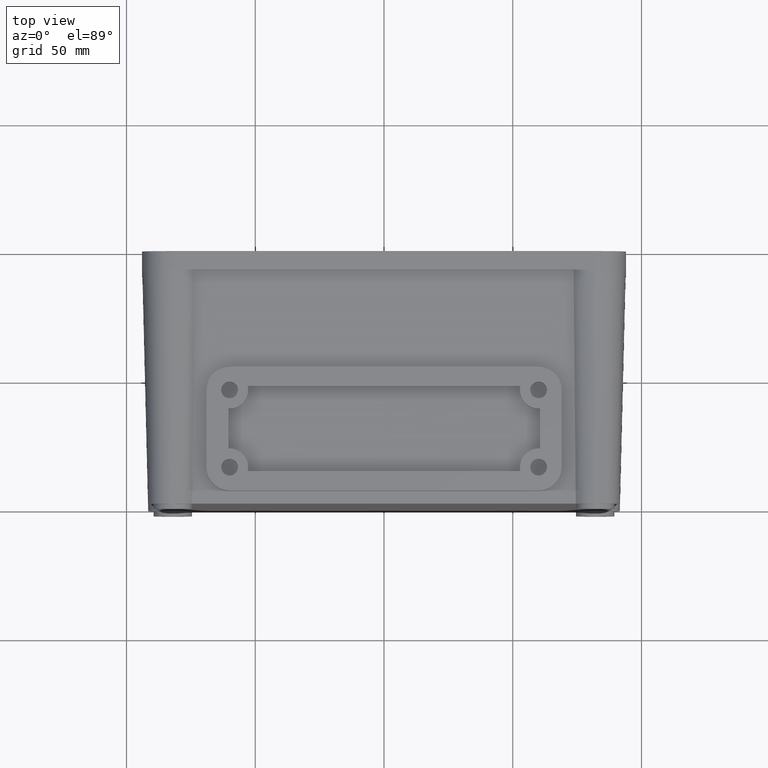
[diagram: clean part render]
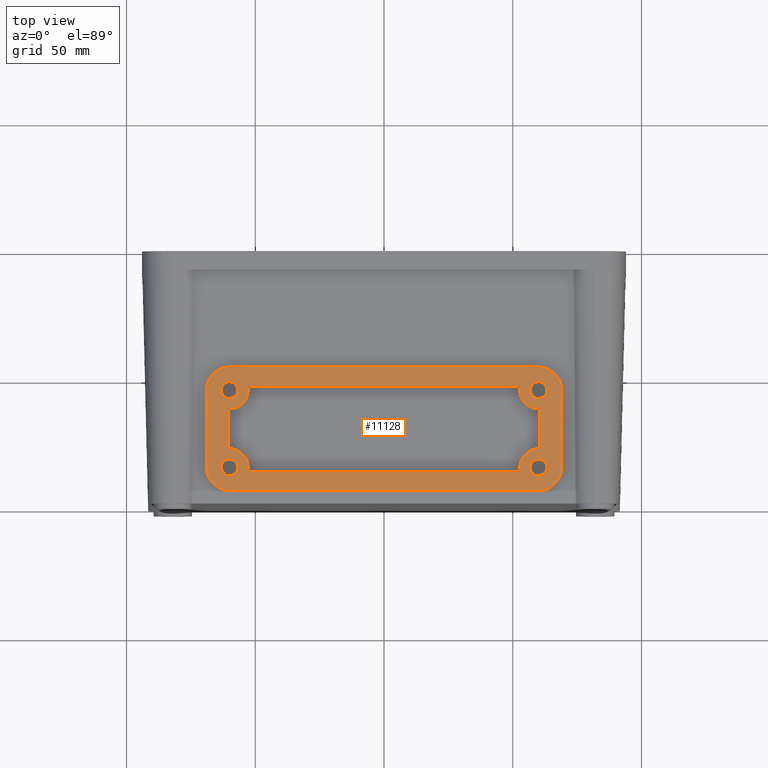
[diagram: same view with one face highlighted and labeled with its STEP entity id]
A machine part, top view. The second image highlights one B-rep face of the part: STEP entity #11128.
In plain terms, the highlighted planar face has unit normal (0, 0, 1).
Its self-contained STEP definition (entity closure, byte-faithful):
#395 = EDGE_CURVE ( 'NONE', #430, #435, #12154, .T. ) ;
#406 = VERTEX_POINT ( 'NONE', #12186 ) ;
#418 = VERTEX_POINT ( 'NONE', #12234 ) ;
#422 = EDGE_CURVE ( 'NONE', #423, #406, #12230, .T. ) ;
#423 = VERTEX_POINT ( 'NONE', #12228 ) ;
#430 = VERTEX_POINT ( 'NONE', #12222 ) ;
#435 = VERTEX_POINT ( 'NONE', #12257 ) ;
#3760 = CARTESIAN_POINT ( 'NONE',  ( 63.25000000000000000, 44.00000000000056800, 94.00000000078212300 ) ) ;
#3786 = CARTESIAN_POINT ( 'NONE',  ( 60.00000000000000000, 14.00000000000056100, 94.00000000078212300 ) ) ;
#3789 = CARTESIAN_POINT ( 'NONE',  ( -56.74999999999999300, 14.00000000000056100, 94.00000000078212300 ) ) ;
#3825 = CIRCLE ( 'NONE', #3843, 3.250000000000002700 ) ;
#3828 = DIRECTION ( 'NONE',  ( -1.000000000000000000, 0.0000000000000000000, 0.0000000000000000000 ) ) ;
#3829 = DIRECTION ( 'NONE',  ( -0.0000000000000000000, -0.0000000000000000000, -1.000000000000000000 ) ) ;
#3830 = CARTESIAN_POINT ( 'NONE',  ( -60.00000000000000000, 14.00000000000056100, 94.00000000078212300 ) ) ;
#3831 = AXIS2_PLACEMENT_3D ( 'NONE', #3830, #3829, #3828 ) ;
#3834 = CIRCLE ( 'NONE', #3871, 3.250000000000009800 ) ;
#3835 = DIRECTION ( 'NONE',  ( 0.0000000000000000000, 0.0000000000000000000, 1.000000000000000000 ) ) ;
#3836 = CIRCLE ( 'NONE', #3831, 7.250000000000006200 ) ;
#3842 = CARTESIAN_POINT ( 'NONE',  ( -52.75000000000000000, 14.00000000000056100, 94.00000000078212300 ) ) ;
#3843 = AXIS2_PLACEMENT_3D ( 'NONE', #3786, #3835, #3879 ) ;
#3849 = CARTESIAN_POINT ( 'NONE',  ( 56.74999999999998600, 44.00000000000056800, 94.00000000078212300 ) ) ;
#3865 = DIRECTION ( 'NONE',  ( -1.000000000000000000, 0.0000000000000000000, 0.0000000000000000000 ) ) ;
#3866 = DIRECTION ( 'NONE',  ( 0.0000000000000000000, 0.0000000000000000000, 1.000000000000000000 ) ) ;
#3867 = CARTESIAN_POINT ( 'NONE',  ( 60.00000000000000000, 44.00000000000056800, 94.00000000078212300 ) ) ;
#3871 = AXIS2_PLACEMENT_3D ( 'NONE', #3867, #3866, #3865 ) ;
#3876 = CARTESIAN_POINT ( 'NONE',  ( -63.25000000000000000, 14.00000000000056100, 94.00000000078212300 ) ) ;
#3879 = DIRECTION ( 'NONE',  ( 1.000000000000000000, 0.0000000000000000000, 0.0000000000000000000 ) ) ;
#3914 = CARTESIAN_POINT ( 'NONE',  ( 60.49999999999999300, 36.76726192925584500, 94.00000000078212300 ) ) ;
#3915 = DIRECTION ( 'NONE',  ( -1.000000000000000000, 0.0000000000000000000, 0.0000000000000000000 ) ) ;
#3916 = DIRECTION ( 'NONE',  ( 0.0000000000000000000, 0.0000000000000000000, 1.000000000000000000 ) ) ;
#3917 = CARTESIAN_POINT ( 'NONE',  ( -60.00000000000000000, 14.00000000000056100, 94.00000000078212300 ) ) ;
#3918 = AXIS2_PLACEMENT_3D ( 'NONE', #3917, #3916, #3915 ) ;
#3929 = CIRCLE ( 'NONE', #3918, 3.250000000000002700 ) ;
#3961 = CARTESIAN_POINT ( 'NONE',  ( 56.74999999999998600, 14.00000000000056100, 94.00000000078212300 ) ) ;
#3979 = CARTESIAN_POINT ( 'NONE',  ( 63.25000000000000000, 14.00000000000056100, 94.00000000078212300 ) ) ;
#4739 = DIRECTION ( 'NONE',  ( 0.0000000000000000000, 0.0000000000000000000, 1.000000000000000000 ) ) ;
#5026 = VECTOR ( 'NONE', #6378, 1000.000000000000000 ) ;
#5565 = DIRECTION ( 'NONE',  ( 1.000000000000000000, 0.0000000000000000000, 0.0000000000000000000 ) ) ;
#6378 = DIRECTION ( 'NONE',  ( -0.0000000000000000000, 1.000000000000000000, -0.0000000000000000000 ) ) ;
#6626 = CARTESIAN_POINT ( 'NONE',  ( -52.90686952044444500, 12.50000000000056000, 94.00000000078212300 ) ) ;
#6627 = LINE ( 'NONE', #6626, #6633 ) ;
#6632 = DIRECTION ( 'NONE',  ( 1.000000000000000000, 0.0000000000000000000, 0.0000000000000000000 ) ) ;
#6633 = VECTOR ( 'NONE', #6632, 1000.000000000000000 ) ;
#7139 = CARTESIAN_POINT ( 'NONE',  ( -60.00000000000000000, 44.00000000000056800, 94.00000000078212300 ) ) ;
#7146 = LINE ( 'NONE', #3914, #5026 ) ;
#7147 = AXIS2_PLACEMENT_3D ( 'NONE', #7139, #4739, #5565 ) ;
#7204 = CIRCLE ( 'NONE', #7147, 3.250000000000002700 ) ;
#7218 = LINE ( 'NONE', #7353, #7352 ) ;
#7227 = CARTESIAN_POINT ( 'NONE',  ( -69.00000000000000000, 13.99999999999999800, 94.00000000078212300 ) ) ;
#7278 = CARTESIAN_POINT ( 'NONE',  ( 60.00000000000001400, 4.999999999999995600, 94.00000000078212300 ) ) ;
#7299 = CARTESIAN_POINT ( 'NONE',  ( -60.00000000000001400, 4.999999999999990200, 94.00000000078212300 ) ) ;
#7310 = CARTESIAN_POINT ( 'NONE',  ( -69.00000000000000000, 44.00000000000000000, 94.00000000078212300 ) ) ;
#7350 = DIRECTION ( 'NONE',  ( 0.0000000000000000000, -1.000000000000000000, 0.0000000000000000000 ) ) ;
#7352 = VECTOR ( 'NONE', #7350, 1000.000000000000000 ) ;
#7353 = CARTESIAN_POINT ( 'NONE',  ( -69.00000000000000000, 44.00000000000000000, 94.00000000078212300 ) ) ;
#7363 = CIRCLE ( 'NONE', #7499, 9.000000000000001800 ) ;
#7390 = DIRECTION ( 'NONE',  ( 1.000000000000000000, 0.0000000000000000000, 0.0000000000000000000 ) ) ;
#7392 = DIRECTION ( 'NONE',  ( 0.0000000000000000000, 0.0000000000000000000, 1.000000000000000000 ) ) ;
#7394 = CARTESIAN_POINT ( 'NONE',  ( 60.00000000000001400, 13.99999999999999600, 94.00000000078212300 ) ) ;
#7404 = AXIS2_PLACEMENT_3D ( 'NONE', #7394, #7392, #7390 ) ;
#7410 = CIRCLE ( 'NONE', #7404, 8.999999999999994700 ) ;
#7435 = CARTESIAN_POINT ( 'NONE',  ( 69.00000000000000000, 44.00000000000000000, 94.00000000078212300 ) ) ;
#7440 = AXIS2_PLACEMENT_3D ( 'NONE', #7472, #7547, #7545 ) ;
#7450 = CARTESIAN_POINT ( 'NONE',  ( -52.90686952044444500, 45.50000000000056800, 94.00000000078212300 ) ) ;
#7452 = LINE ( 'NONE', #7450, #7532 ) ;
#7472 = CARTESIAN_POINT ( 'NONE',  ( 60.00000000000000000, 44.00000000000056800, 94.00000000078212300 ) ) ;
#7478 = DIRECTION ( 'NONE',  ( 1.000000000000000000, 0.0000000000000000000, 0.0000000000000000000 ) ) ;
#7480 = DIRECTION ( 'NONE',  ( 0.0000000000000000000, 0.0000000000000000000, 1.000000000000000000 ) ) ;
#7482 = CARTESIAN_POINT ( 'NONE',  ( -60.00000000000001400, 13.99999999999999600, 94.00000000078212300 ) ) ;
#7499 = AXIS2_PLACEMENT_3D ( 'NONE', #7482, #7480, #7478 ) ;
#7506 = CARTESIAN_POINT ( 'NONE',  ( -52.90686952044444500, 45.50000000000056800, 94.00000000078212300 ) ) ;
#7508 = FACE_BOUND ( 'NONE', #11145, .T. ) ;
#7510 = DIRECTION ( 'NONE',  ( -1.000000000000000000, 0.0000000000000000000, 0.0000000000000000000 ) ) ;
#7512 = DIRECTION ( 'NONE',  ( 0.0000000000000000000, 0.0000000000000000000, 1.000000000000000000 ) ) ;
#7514 = CARTESIAN_POINT ( 'NONE',  ( -60.00000000000000000, 14.00000000000056100, 94.00000000078212300 ) ) ;
#7515 = AXIS2_PLACEMENT_3D ( 'NONE', #7514, #7512, #7510 ) ;
#7524 = CIRCLE ( 'NONE', #7515, 3.250000000000002700 ) ;
#7530 = DIRECTION ( 'NONE',  ( -1.000000000000000000, -0.0000000000000000000, -0.0000000000000000000 ) ) ;
#7532 = VECTOR ( 'NONE', #7530, 1000.000000000000000 ) ;
#7533 = DIRECTION ( 'NONE',  ( 1.000000000000000000, 0.0000000000000000000, 0.0000000000000000000 ) ) ;
#7535 = DIRECTION ( 'NONE',  ( 0.0000000000000000000, 0.0000000000000000000, 1.000000000000000000 ) ) ;
#7536 = CARTESIAN_POINT ( 'NONE',  ( 60.00000000000000000, 14.00000000000056100, 94.00000000078212300 ) ) ;
#7537 = AXIS2_PLACEMENT_3D ( 'NONE', #7536, #7535, #7533 ) ;
#7543 = CIRCLE ( 'NONE', #7537, 3.250000000000002700 ) ;
#7545 = DIRECTION ( 'NONE',  ( -1.000000000000000000, 0.0000000000000000000, 0.0000000000000000000 ) ) ;
#7547 = DIRECTION ( 'NONE',  ( 0.0000000000000000000, 0.0000000000000000000, 1.000000000000000000 ) ) ;
#7564 = CIRCLE ( 'NONE', #7440, 3.250000000000009800 ) ;
#7582 = CARTESIAN_POINT ( 'NONE',  ( -60.00000000000001400, 44.00000000000000000, 94.00000000078212300 ) ) ;
#7583 = DIRECTION ( 'NONE',  ( -0.0000000000000000000, 1.000000000000000000, -0.0000000000000000000 ) ) ;
#7585 = VECTOR ( 'NONE', #7583, 1000.000000000000000 ) ;
#7587 = CARTESIAN_POINT ( 'NONE',  ( 69.00000000000000000, 44.00000000000000000, 94.00000000078212300 ) ) ;
#7588 = LINE ( 'NONE', #7587, #7585 ) ;
#7590 = FACE_BOUND ( 'NONE', #11114, .T. ) ;
#7592 = AXIS2_PLACEMENT_3D ( 'NONE', #7582, #7599, #7598 ) ;
#7594 = FACE_BOUND ( 'NONE', #11118, .T. ) ;
#7598 = DIRECTION ( 'NONE',  ( 1.000000000000000000, 0.0000000000000000000, -0.0000000000000000000 ) ) ;
#7599 = DIRECTION ( 'NONE',  ( 0.0000000000000000000, 0.0000000000000000000, 1.000000000000000000 ) ) ;
#7604 = FACE_BOUND ( 'NONE', #11099, .T. ) ;
#7625 = FACE_OUTER_BOUND ( 'NONE', #11160, .T. ) ;
#7626 = PLANE ( 'NONE',  #7592 ) ;
#7628 = FACE_BOUND ( 'NONE', #11104, .T. ) ;
#7656 = CARTESIAN_POINT ( 'NONE',  ( 60.00000000000001400, 53.00000000000000700, 94.00000000078212300 ) ) ;
#7659 = CARTESIAN_POINT ( 'NONE',  ( -60.00000000000001400, 44.00000000000000000, 94.00000000078212300 ) ) ;
#7686 = CARTESIAN_POINT ( 'NONE',  ( 60.49999999999999300, 36.76726192925584500, 94.00000000078212300 ) ) ;
#7688 = DIRECTION ( 'NONE',  ( 1.000000000000000000, 0.0000000000000000000, 0.0000000000000000000 ) ) ;
#7689 = VECTOR ( 'NONE', #7688, 1000.000000000000000 ) ;
#7691 = CARTESIAN_POINT ( 'NONE',  ( 69.00000000000000000, 13.99999999999999800, 94.00000000078212300 ) ) ;
#7696 = CARTESIAN_POINT ( 'NONE',  ( -60.49999999999999300, 21.23273807074527800, 94.00000000078212300 ) ) ;
#7716 = CARTESIAN_POINT ( 'NONE',  ( -60.00000000000001400, 4.999999999999990200, 94.00000000078212300 ) ) ;
#7717 = LINE ( 'NONE', #7716, #7689 ) ;
#7730 = DIRECTION ( 'NONE',  ( -1.000000000000000000, 0.0000000000000000000, 0.0000000000000000000 ) ) ;
#7732 = CARTESIAN_POINT ( 'NONE',  ( 60.49999999999999300, 21.23273807074527800, 94.00000000078212300 ) ) ;
#7736 = CARTESIAN_POINT ( 'NONE',  ( 52.90686952044444500, 12.50000000000056100, 94.00000000078212300 ) ) ;
#7739 = DIRECTION ( 'NONE',  ( -0.0000000000000000000, -0.0000000000000000000, -1.000000000000000000 ) ) ;
#7740 = DIRECTION ( 'NONE',  ( 1.000000000000000000, 0.0000000000000000000, 0.0000000000000000000 ) ) ;
#7742 = DIRECTION ( 'NONE',  ( -0.0000000000000000000, -0.0000000000000000000, -1.000000000000000000 ) ) ;
#7744 = CARTESIAN_POINT ( 'NONE',  ( -60.00000000000000000, 44.00000000000056800, 94.00000000078212300 ) ) ;
#7747 = CARTESIAN_POINT ( 'NONE',  ( 52.90686952044444500, 45.50000000000056800, 94.00000000078212300 ) ) ;
#7749 = CIRCLE ( 'NONE', #7761, 7.249999999999999100 ) ;
#7751 = CARTESIAN_POINT ( 'NONE',  ( 60.00000000000000000, 44.00000000000056800, 94.00000000078212300 ) ) ;
#7755 = DIRECTION ( 'NONE',  ( 0.0000000000000000000, -1.000000000000000000, 0.0000000000000000000 ) ) ;
#7756 = VECTOR ( 'NONE', #7755, 1000.000000000000000 ) ;
#7758 = CARTESIAN_POINT ( 'NONE',  ( -60.49999999999999300, 36.76726192925584500, 94.00000000078212300 ) ) ;
#7761 = AXIS2_PLACEMENT_3D ( 'NONE', #7744, #7742, #7740 ) ;
#7764 = DIRECTION ( 'NONE',  ( -1.000000000000000000, 0.0000000000000000000, 0.0000000000000000000 ) ) ;
#7766 = DIRECTION ( 'NONE',  ( -0.0000000000000000000, -0.0000000000000000000, -1.000000000000000000 ) ) ;
#7768 = CARTESIAN_POINT ( 'NONE',  ( -60.00000000000000000, 14.00000000000056100, 94.00000000078212300 ) ) ;
#7769 = AXIS2_PLACEMENT_3D ( 'NONE', #7768, #7766, #7764 ) ;
#7771 = CIRCLE ( 'NONE', #7776, 7.249999999999999100 ) ;
#7773 = LINE ( 'NONE', #7758, #7756 ) ;
#7776 = AXIS2_PLACEMENT_3D ( 'NONE', #7751, #7739, #7730 ) ;
#7781 = CIRCLE ( 'NONE', #7769, 7.250000000000006200 ) ;
#7783 = DIRECTION ( 'NONE',  ( 1.000000000000000000, 0.0000000000000000000, 0.0000000000000000000 ) ) ;
#7785 = DIRECTION ( 'NONE',  ( 0.0000000000000000000, 0.0000000000000000000, 1.000000000000000000 ) ) ;
#7787 = AXIS2_PLACEMENT_3D ( 'NONE', #7659, #7785, #7783 ) ;
#7789 = CIRCLE ( 'NONE', #7787, 9.000000000000001800 ) ;
#7790 = CARTESIAN_POINT ( 'NONE',  ( -60.00000000000001400, 53.00000000000000700, 94.00000000078212300 ) ) ;
#7868 = CARTESIAN_POINT ( 'NONE',  ( 60.00000000000001400, 44.00000000000000000, 94.00000000078212300 ) ) ;
#7877 = LINE ( 'NONE', #7997, #7995 ) ;
#7889 = CIRCLE ( 'NONE', #8007, 8.999999999999994700 ) ;
#7993 = DIRECTION ( 'NONE',  ( -1.000000000000000000, -0.0000000000000000000, -0.0000000000000000000 ) ) ;
#7995 = VECTOR ( 'NONE', #7993, 1000.000000000000000 ) ;
#7997 = CARTESIAN_POINT ( 'NONE',  ( -60.00000000000001400, 53.00000000000000700, 94.00000000078212300 ) ) ;
#8003 = DIRECTION ( 'NONE',  ( 1.000000000000000000, 0.0000000000000000000, 0.0000000000000000000 ) ) ;
#8005 = DIRECTION ( 'NONE',  ( 0.0000000000000000000, 0.0000000000000000000, 1.000000000000000000 ) ) ;
#8007 = AXIS2_PLACEMENT_3D ( 'NONE', #7868, #8005, #8003 ) ;
#8187 = VERTEX_POINT ( 'NONE', #3760 ) ;
#8200 = VERTEX_POINT ( 'NONE', #3789 ) ;
#8213 = VERTEX_POINT ( 'NONE', #3842 ) ;
#8217 = EDGE_CURVE ( 'NONE', #8213, #418, #3836, .T. ) ;
#8219 = EDGE_CURVE ( 'NONE', #8314, #8315, #3825, .T. ) ;
#8221 = VERTEX_POINT ( 'NONE', #3849 ) ;
#8231 = EDGE_CURVE ( 'NONE', #8221, #8187, #3834, .T. ) ;
#8251 = VERTEX_POINT ( 'NONE', #3876 ) ;
#8297 = EDGE_CURVE ( 'NONE', #8251, #8200, #3929, .T. ) ;
#8314 = VERTEX_POINT ( 'NONE', #3961 ) ;
#8315 = VERTEX_POINT ( 'NONE', #3979 ) ;
#11022 = VERTEX_POINT ( 'NONE', #7278 ) ;
#11025 = EDGE_CURVE ( 'NONE', #11051, #11043, #7218, .T. ) ;
#11043 = VERTEX_POINT ( 'NONE', #7227 ) ;
#11046 = VERTEX_POINT ( 'NONE', #7299 ) ;
#11051 = VERTEX_POINT ( 'NONE', #7310 ) ;
#11067 = EDGE_CURVE ( 'NONE', #11022, #11132, #7410, .T. ) ;
#11074 = EDGE_CURVE ( 'NONE', #11043, #11046, #7363, .T. ) ;
#11089 = VERTEX_POINT ( 'NONE', #7435 ) ;
#11097 = ORIENTED_EDGE ( 'NONE', *, *, #11110, .F. ) ;
#11098 = EDGE_CURVE ( 'NONE', #8187, #8221, #7564, .T. ) ;
#11099 = EDGE_LOOP ( 'NONE', ( #11097, #11111 ) ) ;
#11100 = ORIENTED_EDGE ( 'NONE', *, *, #11163, .F. ) ;
#11101 = ORIENTED_EDGE ( 'NONE', *, *, #8231, .F. ) ;
#11102 = EDGE_CURVE ( 'NONE', #8315, #8314, #7543, .T. ) ;
#11103 = ORIENTED_EDGE ( 'NONE', *, *, #11177, .F. ) ;
#11104 = EDGE_LOOP ( 'NONE', ( #11106, #11105 ) ) ;
#11105 = ORIENTED_EDGE ( 'NONE', *, *, #8219, .F. ) ;
#11106 = ORIENTED_EDGE ( 'NONE', *, *, #11102, .F. ) ;
#11107 = EDGE_CURVE ( 'NONE', #11170, #11112, #7452, .T. ) ;
#11108 = ORIENTED_EDGE ( 'NONE', *, *, #11168, .F. ) ;
#11109 = ORIENTED_EDGE ( 'NONE', *, *, #11175, .F. ) ;
#11110 = EDGE_CURVE ( 'NONE', #8200, #8251, #7524, .T. ) ;
#11111 = ORIENTED_EDGE ( 'NONE', *, *, #8297, .F. ) ;
#11112 = VERTEX_POINT ( 'NONE', #7506 ) ;
#11113 = ORIENTED_EDGE ( 'NONE', *, *, #11169, .F. ) ;
#11114 = EDGE_LOOP ( 'NONE', ( #11108, #11167, #11113, #11109, #11103, #11159, #11157, #11162, #11100, #11164 ) ) ;
#11118 = EDGE_LOOP ( 'NONE', ( #11178, #11101 ) ) ;
#11125 = EDGE_CURVE ( 'NONE', #11132, #11089, #7588, .T. ) ;
#11128 = ADVANCED_FACE ( 'NONE', ( #7594, #7628, #7604, #7590, #7508, #7625 ), #7626, .T. ) ;
#11131 = EDGE_CURVE ( 'NONE', #11046, #11022, #7717, .T. ) ;
#11132 = VERTEX_POINT ( 'NONE', #7691 ) ;
#11145 = EDGE_LOOP ( 'NONE', ( #11147, #11166 ) ) ;
#11146 = EDGE_CURVE ( 'NONE', #11158, #11051, #7789, .T. ) ;
#11147 = ORIENTED_EDGE ( 'NONE', *, *, #11176, .F. ) ;
#11148 = ORIENTED_EDGE ( 'NONE', *, *, #11131, .T. ) ;
#11150 = ORIENTED_EDGE ( 'NONE', *, *, #11025, .T. ) ;
#11151 = VERTEX_POINT ( 'NONE', #7656 ) ;
#11152 = ORIENTED_EDGE ( 'NONE', *, *, #11211, .T. ) ;
#11153 = ORIENTED_EDGE ( 'NONE', *, *, #11074, .T. ) ;
#11154 = ORIENTED_EDGE ( 'NONE', *, *, #11213, .T. ) ;
#11155 = ORIENTED_EDGE ( 'NONE', *, *, #11067, .T. ) ;
#11156 = VERTEX_POINT ( 'NONE', #7696 ) ;
#11157 = ORIENTED_EDGE ( 'NONE', *, *, #8217, .F. ) ;
#11158 = VERTEX_POINT ( 'NONE', #7790 ) ;
#11159 = ORIENTED_EDGE ( 'NONE', *, *, #11174, .F. ) ;
#11160 = EDGE_LOOP ( 'NONE', ( #11165, #11150, #11153, #11148, #11155, #11212, #11152, #11154 ) ) ;
#11161 = EDGE_CURVE ( 'NONE', #11156, #8213, #7781, .T. ) ;
#11162 = ORIENTED_EDGE ( 'NONE', *, *, #11161, .F. ) ;
#11163 = EDGE_CURVE ( 'NONE', #435, #11156, #7773, .T. ) ;
#11164 = ORIENTED_EDGE ( 'NONE', *, *, #395, .F. ) ;
#11165 = ORIENTED_EDGE ( 'NONE', *, *, #11146, .T. ) ;
#11166 = ORIENTED_EDGE ( 'NONE', *, *, #422, .F. ) ;
#11167 = ORIENTED_EDGE ( 'NONE', *, *, #11107, .F. ) ;
#11168 = EDGE_CURVE ( 'NONE', #11112, #430, #7749, .T. ) ;
#11169 = EDGE_CURVE ( 'NONE', #11173, #11170, #7771, .T. ) ;
#11170 = VERTEX_POINT ( 'NONE', #7747 ) ;
#11171 = VERTEX_POINT ( 'NONE', #7736 ) ;
#11172 = VERTEX_POINT ( 'NONE', #7732 ) ;
#11173 = VERTEX_POINT ( 'NONE', #7686 ) ;
#11174 = EDGE_CURVE ( 'NONE', #418, #11171, #6627, .T. ) ;
#11175 = EDGE_CURVE ( 'NONE', #11172, #11173, #7146, .T. ) ;
#11176 = EDGE_CURVE ( 'NONE', #406, #423, #7204, .T. ) ;
#11177 = EDGE_CURVE ( 'NONE', #11171, #11172, #13467, .T. ) ;
#11178 = ORIENTED_EDGE ( 'NONE', *, *, #11098, .F. ) ;
#11211 = EDGE_CURVE ( 'NONE', #11089, #11151, #7889, .T. ) ;
#11212 = ORIENTED_EDGE ( 'NONE', *, *, #11125, .T. ) ;
#11213 = EDGE_CURVE ( 'NONE', #11151, #11158, #7877, .T. ) ;
#12154 = CIRCLE ( 'NONE', #12158, 7.249999999999999100 ) ;
#12158 = AXIS2_PLACEMENT_3D ( 'NONE', #12208, #12207, #12206 ) ;
#12186 = CARTESIAN_POINT ( 'NONE',  ( -56.74999999999999300, 44.00000000000056800, 94.00000000078212300 ) ) ;
#12206 = DIRECTION ( 'NONE',  ( 1.000000000000000000, 0.0000000000000000000, 0.0000000000000000000 ) ) ;
#12207 = DIRECTION ( 'NONE',  ( -0.0000000000000000000, -0.0000000000000000000, -1.000000000000000000 ) ) ;
#12208 = CARTESIAN_POINT ( 'NONE',  ( -60.00000000000000000, 44.00000000000056800, 94.00000000078212300 ) ) ;
#12222 = CARTESIAN_POINT ( 'NONE',  ( -52.75000000000000000, 44.00000000000056800, 94.00000000078212300 ) ) ;
#12223 = DIRECTION ( 'NONE',  ( 1.000000000000000000, 0.0000000000000000000, 0.0000000000000000000 ) ) ;
#12224 = DIRECTION ( 'NONE',  ( 0.0000000000000000000, 0.0000000000000000000, 1.000000000000000000 ) ) ;
#12225 = CARTESIAN_POINT ( 'NONE',  ( -60.00000000000000000, 44.00000000000056800, 94.00000000078212300 ) ) ;
#12226 = AXIS2_PLACEMENT_3D ( 'NONE', #12225, #12224, #12223 ) ;
#12228 = CARTESIAN_POINT ( 'NONE',  ( -63.25000000000000000, 44.00000000000056800, 94.00000000078212300 ) ) ;
#12230 = CIRCLE ( 'NONE', #12226, 3.250000000000002700 ) ;
#12234 = CARTESIAN_POINT ( 'NONE',  ( -52.90686952044444500, 12.50000000000056000, 94.00000000078212300 ) ) ;
#12257 = CARTESIAN_POINT ( 'NONE',  ( -60.49999999999999300, 36.76726192925584500, 94.00000000078212300 ) ) ;
#13464 = CARTESIAN_POINT ( 'NONE',  ( 60.00000000000000000, 14.00000000000056100, 94.00000000078212300 ) ) ;
#13466 = AXIS2_PLACEMENT_3D ( 'NONE', #13464, #13477, #13473 ) ;
#13467 = CIRCLE ( 'NONE', #13466, 7.250000000000006200 ) ;
#13473 = DIRECTION ( 'NONE',  ( 1.000000000000000000, 0.0000000000000000000, 0.0000000000000000000 ) ) ;
#13477 = DIRECTION ( 'NONE',  ( -0.0000000000000000000, -0.0000000000000000000, -1.000000000000000000 ) ) ;